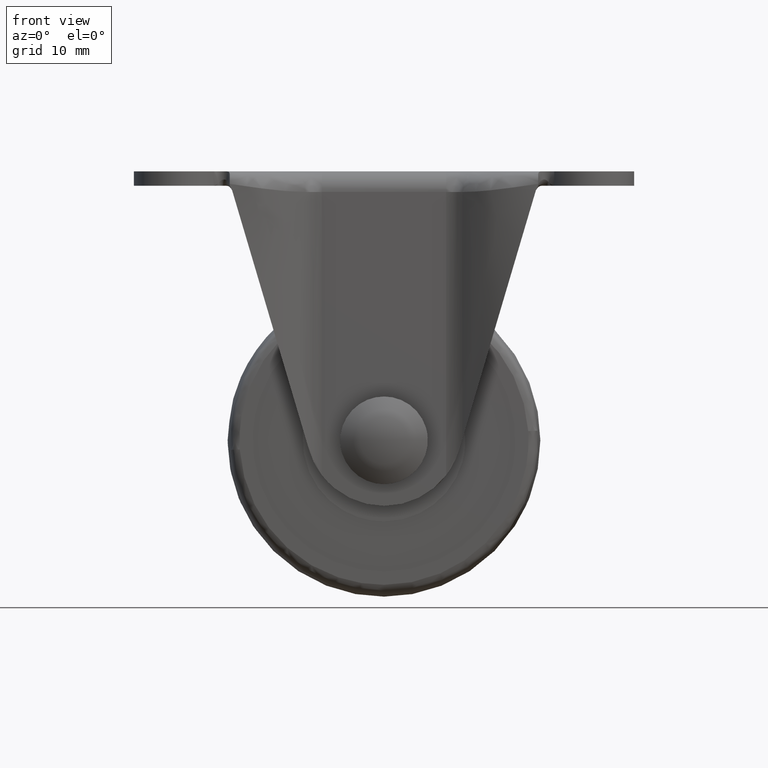
[diagram: clean part render]
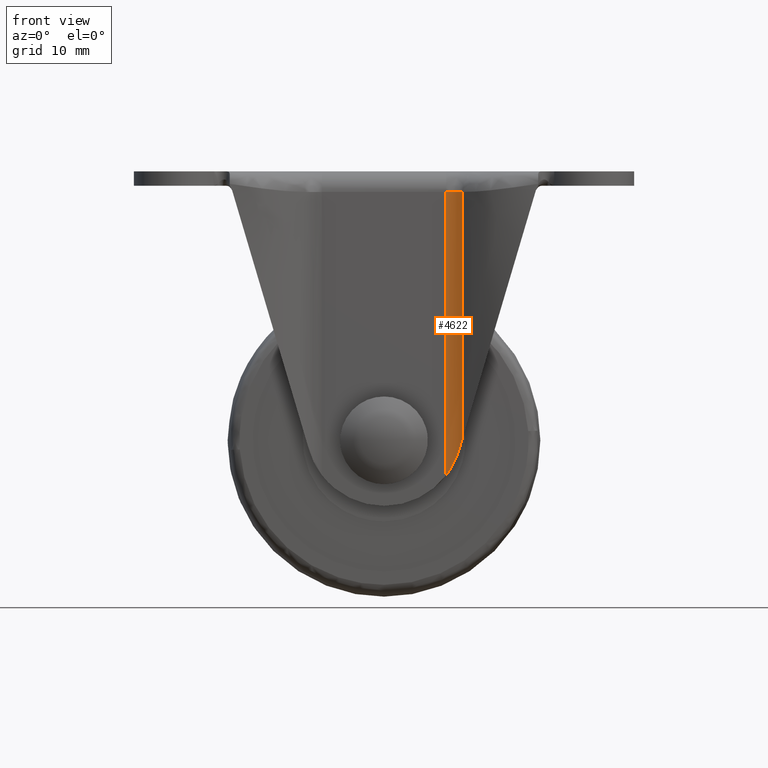
[diagram: same view with one face highlighted and labeled with its STEP entity id]
A machine part, front view. The second image highlights one B-rep face of the part: STEP entity #4622.
In plain terms, the highlighted face is a freeform B-spline surface patch.
Its self-contained STEP definition (entity closure, byte-faithful):
#3570=CARTESIAN_POINT('',(11.985271999999901,-18.569459646072850,-44.550108000000087));
#3571=VERTEX_POINT('',#3570);
#3577=CARTESIAN_POINT('',(9.928237027016358,-18.0,-48.594742846746200));
#3578=VERTEX_POINT('',#3577);
#3579=CARTESIAN_POINT('',(9.928237027016371,-18.0,-48.594742846746207));
#3580=CARTESIAN_POINT('',(10.161227311281401,-18.0,-48.290166024828672));
#3581=CARTESIAN_POINT('',(10.379750963162380,-18.020182750118948,-47.975524688719020));
#3582=CARTESIAN_POINT('',(10.634885980123460,-18.062574077759152,-47.569505928807132));
#3583=CARTESIAN_POINT('',(10.685009978132030,-18.071919094310019,-47.487665042396060));
#3584=CARTESIAN_POINT('',(10.783445477478860,-18.092168963805619,-47.322700347149897));
#3585=CARTESIAN_POINT('',(10.831819104005190,-18.103089647302959,-47.239465403372968));
#3586=CARTESIAN_POINT('',(10.973706350230660,-18.137814432025671,-46.988712086893273));
#3587=CARTESIAN_POINT('',(11.063896579253759,-18.163539633796852,-46.820340893337431));
#3588=CARTESIAN_POINT('',(11.321800824846280,-18.246257470001371,-46.311449612602061));
#3589=CARTESIAN_POINT('',(11.476892015039240,-18.308767343307640,-45.967163829728712));
#3590=CARTESIAN_POINT('',(11.755040772066140,-18.438214089135570,-45.267409473277908));
#3591=CARTESIAN_POINT('',(11.878093404230540,-18.505192767649319,-44.911946162685162));
#3592=CARTESIAN_POINT('',(11.985271999999890,-18.569459646072840,-44.550108000000087));
#3593=B_SPLINE_CURVE_WITH_KNOTS('',3,(#3579,#3580,#3581,#3582,#3583,#3584,#3585,#3586,#3587,#3588,#3589,#3590,#3591,#3592),.UNSPECIFIED.,.F.,.U.,(4,2,2,2,2,2,4),(0.0,0.249999999999991,0.312499999999991,0.374999999999990,0.499999999999994,0.749999999999997,1.0),.UNSPECIFIED.);
#3594=EDGE_CURVE('',#3578,#3571,#3593,.T.);
#3717=CARTESIAN_POINT('',(12.548575408855120,-18.977777843264601,-42.648378424839400));
#3718=VERTEX_POINT('',#3717);
#3732=CARTESIAN_POINT('',(12.548575408855120,-18.977777843264601,-42.648378424839400));
#3733=CARTESIAN_POINT('',(12.284746073683795,-18.749031544232981,-43.539074347503792));
#3734=CARTESIAN_POINT('',(11.985271999999931,-18.569459646072868,-44.550108000000101));
#3742=(BOUNDED_CURVE()B_SPLINE_CURVE(2,(#3732,#3733,#3734),.UNSPECIFIED.,.F.,.U.)CURVE()GEOMETRIC_REPRESENTATION_ITEM()QUASI_UNIFORM_CURVE()RATIONAL_B_SPLINE_CURVE((1.0,0.996211303509873,1.0))REPRESENTATION_ITEM(''));
#3743=EDGE_CURVE('',#3718,#3571,#3742,.T.);
#4577=CARTESIAN_POINT('',(9.818369436390272,-18.001509145623810,-49.727111417914863));
#4578=CARTESIAN_POINT('',(9.818369436390272,-18.001509145623810,-2.139322214552124));
#4579=CARTESIAN_POINT('',(11.454367544833856,-17.956556392950439,-49.727111417914855));
#4580=CARTESIAN_POINT('',(11.454367544833856,-17.956556392950439,-2.139322214552123));
#4581=CARTESIAN_POINT('',(12.652669435923023,-19.071268525573061,-49.727111417914841));
#4582=CARTESIAN_POINT('',(12.652669435923023,-19.071268525573061,-2.139322214552123));
#4590=(BOUNDED_SURFACE()B_SPLINE_SURFACE(1,2,((#4577,#4579,#4581),(#4578,#4580,#4582)),.UNSPECIFIED.,.F.,.F.,.U.)B_SPLINE_SURFACE_WITH_KNOTS((2,2),(3,3),(0.0,47.587789203362732),(0.0,3.146617604595046),.UNSPECIFIED.)GEOMETRIC_REPRESENTATION_ITEM()RATIONAL_B_SPLINE_SURFACE(((1.0,0.921570538662610,0.991469650327217),(1.0,0.921570538662610,0.991469650327217)))REPRESENTATION_ITEM('')SURFACE());
#4591=CARTESIAN_POINT('',(12.548575408855120,-18.977777843264601,-3.300000000000000));
#4592=VERTEX_POINT('',#4591);
#4593=CARTESIAN_POINT('',(12.548575408855120,-18.977777843264601,-42.648378424839400));
#4594=CARTESIAN_POINT('',(12.548575408855120,-18.977777843264601,-3.300000000000000));
#4595=QUASI_UNIFORM_CURVE('',1,(#4593,#4594),.UNSPECIFIED.,.F.,.U.);
#4596=EDGE_CURVE('',#3718,#4592,#4595,.T.);
#4597=ORIENTED_EDGE('',*,*,#4596,.T.);
#4598=CARTESIAN_POINT('',(9.928237027016358,-18.0,-3.300000000000000));
#4599=VERTEX_POINT('',#4598);
#4600=CARTESIAN_POINT('',(12.548575408855140,-18.977777843264580,-3.300000000000000));
#4601=CARTESIAN_POINT('',(11.420834853375622,-18.0,-3.299999999999999));
#4602=CARTESIAN_POINT('',(9.928237027016358,-18.0,-3.300000000000000));
#4610=(BOUNDED_CURVE()B_SPLINE_CURVE(2,(#4600,#4601,#4602),.UNSPECIFIED.,.F.,.U.)CURVE()GEOMETRIC_REPRESENTATION_ITEM()QUASI_UNIFORM_CURVE()RATIONAL_B_SPLINE_CURVE((1.0,0.936897950468421,1.0))REPRESENTATION_ITEM(''));
#4611=EDGE_CURVE('',#4592,#4599,#4610,.T.);
#4612=ORIENTED_EDGE('',*,*,#4611,.T.);
#4613=CARTESIAN_POINT('',(9.928237027016358,-18.0,-48.594742846746200));
#4614=CARTESIAN_POINT('',(9.928237027016358,-18.0,-3.300000000000000));
#4615=QUASI_UNIFORM_CURVE('',1,(#4613,#4614),.UNSPECIFIED.,.F.,.U.);
#4616=EDGE_CURVE('',#3578,#4599,#4615,.T.);
#4617=ORIENTED_EDGE('',*,*,#4616,.F.);
#4618=ORIENTED_EDGE('',*,*,#3594,.T.);
#4619=ORIENTED_EDGE('',*,*,#3743,.F.);
#4620=EDGE_LOOP('',(#4597,#4612,#4617,#4618,#4619));
#4621=FACE_OUTER_BOUND('',#4620,.T.);
#4622=ADVANCED_FACE('',(#4621),#4590,.F.);